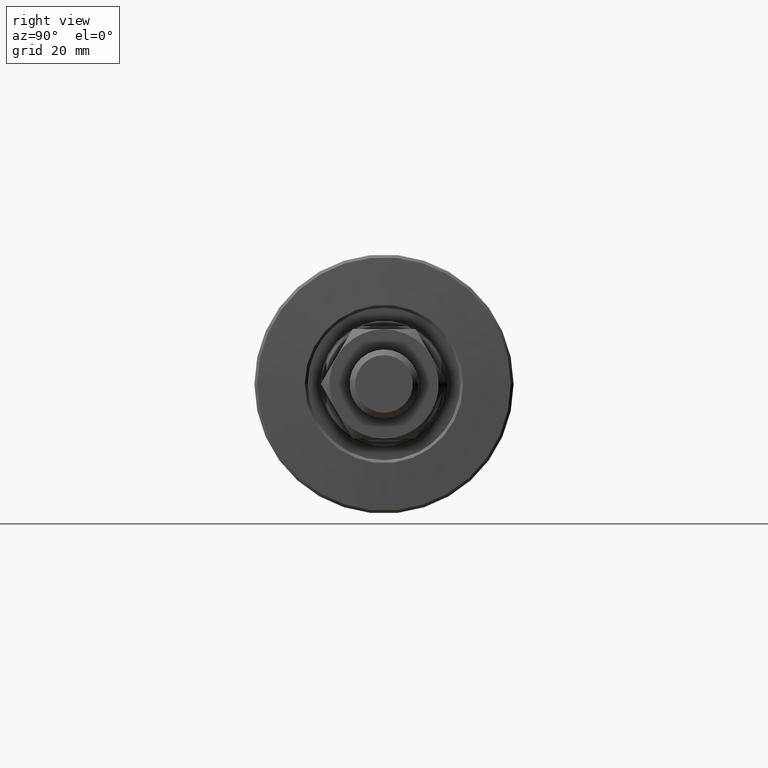
[diagram: clean part render]
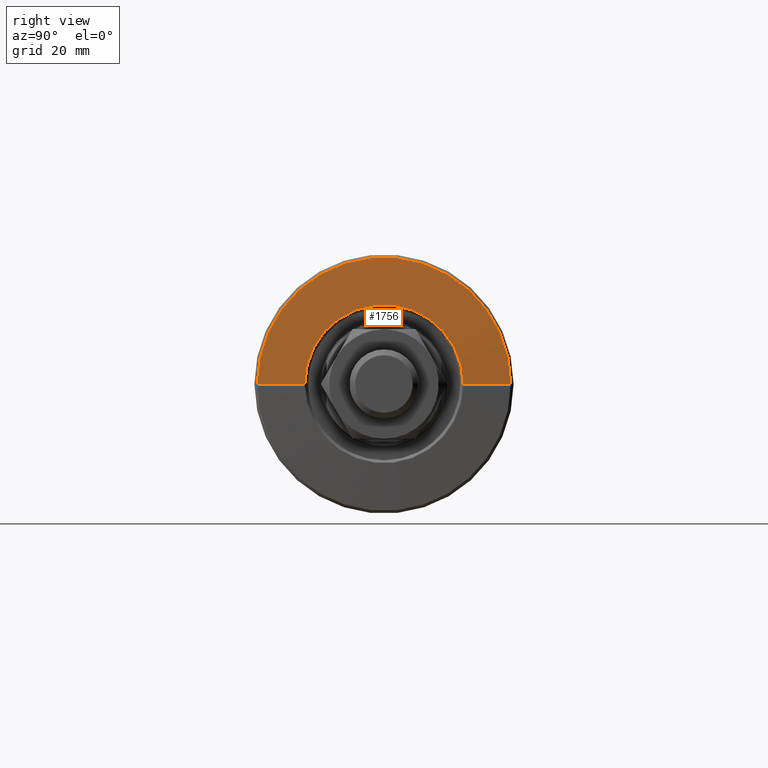
[diagram: same view with one face highlighted and labeled with its STEP entity id]
A machine part, right view. The second image highlights one B-rep face of the part: STEP entity #1756.
In plain terms, the highlighted conical surface has half-angle 87.138 deg.
Its self-contained STEP definition (entity closure, byte-faithful):
#58 = EDGE_CURVE ( 'NONE', #1620, #3051, #502, .T. ) ;
#113 = LINE ( 'NONE', #2298, #2753 ) ;
#201 = DIRECTION ( 'NONE',  ( -1.332643495181402961E-15, -1.000000000000000000, 0.000000000000000000 ) ) ;
#277 = DIRECTION ( 'NONE',  ( -1.000000000000000000, 1.333885945136072597E-15, -0.000000000000000000 ) ) ;
#373 = VERTEX_POINT ( 'NONE', #393 ) ;
#393 = CARTESIAN_POINT ( 'NONE',  ( -1.100000000000612932, 21.99999999999989342, 2.724839128102853891E-15 ) ) ;
#502 = LINE ( 'NONE', #2962, #2001 ) ;
#728 = CIRCLE ( 'NONE', #3903, 13.74937616943895868 ) ;
#899 = CARTESIAN_POINT ( 'NONE',  ( -1.100000000000642242, -3.892282224755411592E-14, 0.000000000000000000 ) ) ;
#1050 = EDGE_LOOP ( 'NONE', ( #2839, #1184, #3323, #3493 ) ) ;
#1055 = EDGE_CURVE ( 'NONE', #3051, #373, #3964, .T. ) ;
#1075 = CARTESIAN_POINT ( 'NONE',  ( -0.6874688084723507009, 13.74937616943891783, 2.189017954870900343E-15 ) ) ;
#1184 = ORIENTED_EDGE ( 'NONE', *, *, #2845, .T. ) ;
#1499 = CARTESIAN_POINT ( 'NONE',  ( -0.6874688084723873382, -13.74937616943899776, 0.000000000000000000 ) ) ;
#1620 = VERTEX_POINT ( 'NONE', #1499 ) ;
#1710 = CARTESIAN_POINT ( 'NONE',  ( -0.6874688084723690196, -3.947309180586395012E-14, 0.000000000000000000 ) ) ;
#1756 = ADVANCED_FACE ( 'NONE', ( #1791 ), #1841, .T. ) ;
#1763 = AXIS2_PLACEMENT_3D ( 'NONE', #899, #2139, #3667 ) ;
#1791 = FACE_OUTER_BOUND ( 'NONE', #1050, .T. ) ;
#1841 = CONICAL_SURFACE ( 'NONE', #2930, 21.99999999999993250, 1.520837931072924532 ) ;
#2001 = VECTOR ( 'NONE', #3301, 1000.000000000000114 ) ;
#2047 = CARTESIAN_POINT ( 'NONE',  ( -1.100000000000671330, -21.99999999999997158, 0.000000000000000000 ) ) ;
#2139 = DIRECTION ( 'NONE',  ( -1.000000000000000000, 1.333885945136072597E-15, -0.000000000000000000 ) ) ;
#2298 = CARTESIAN_POINT ( 'NONE',  ( -1.100000000000612932, 21.99999999999989342, 2.694222958124168921E-15 ) ) ;
#2336 = DIRECTION ( 'NONE',  ( -1.000000000000000000, 1.333885945136072597E-15, -0.000000000000000000 ) ) ;
#2349 = DIRECTION ( 'NONE',  ( -1.330611757141304966E-15, -1.000000000000000000, 0.000000000000000000 ) ) ;
#2500 = EDGE_CURVE ( 'NONE', #1620, #2978, #728, .T. ) ;
#2753 = VECTOR ( 'NONE', #3535, 999.9999999999998863 ) ;
#2839 = ORIENTED_EDGE ( 'NONE', *, *, #2500, .T. ) ;
#2845 = EDGE_CURVE ( 'NONE', #2978, #373, #113, .T. ) ;
#2930 = AXIS2_PLACEMENT_3D ( 'NONE', #3674, #277, #2349 ) ;
#2962 = CARTESIAN_POINT ( 'NONE',  ( -1.100000000000671330, -21.99999999999997158, 0.000000000000000000 ) ) ;
#2978 = VERTEX_POINT ( 'NONE', #1075 ) ;
#3051 = VERTEX_POINT ( 'NONE', #2047 ) ;
#3301 = DIRECTION ( 'NONE',  ( -0.04993761694392286066, -0.9987523388778432043, 0.000000000000000000 ) ) ;
#3323 = ORIENTED_EDGE ( 'NONE', *, *, #1055, .F. ) ;
#3493 = ORIENTED_EDGE ( 'NONE', *, *, #58, .F. ) ;
#3535 = DIRECTION ( 'NONE',  ( -0.04993761694392019612, 0.9987523388778434263, 1.223118854947683487E-16 ) ) ;
#3667 = DIRECTION ( 'NONE',  ( -1.330611757141304966E-15, -1.000000000000000000, 0.000000000000000000 ) ) ;
#3674 = CARTESIAN_POINT ( 'NONE',  ( -1.100000000000642242, -3.892282224755411592E-14, 0.000000000000000000 ) ) ;
#3903 = AXIS2_PLACEMENT_3D ( 'NONE', #1710, #2336, #201 ) ;
#3964 = CIRCLE ( 'NONE', #1763, 21.99999999999993250 ) ;